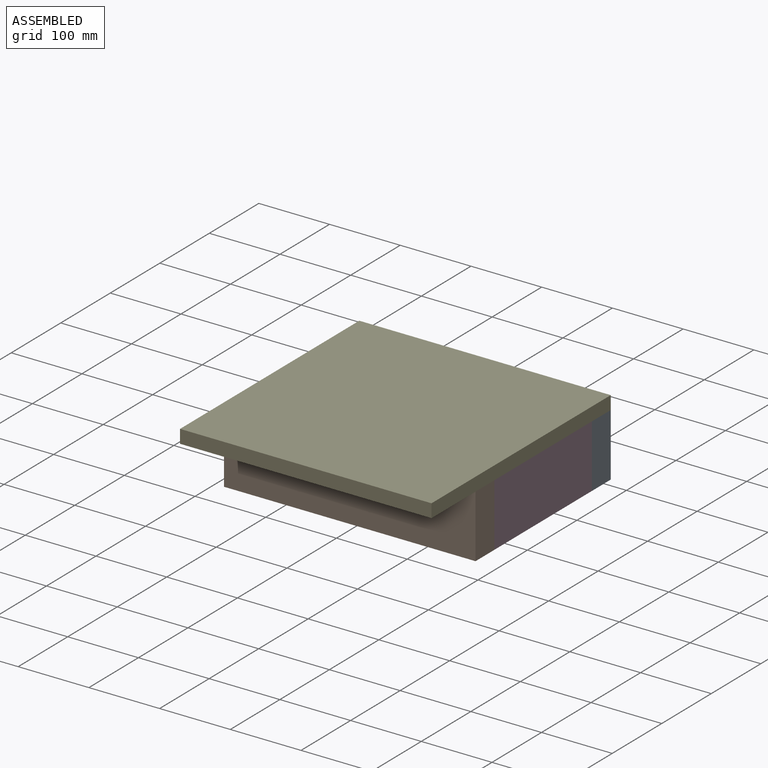
[diagram: assembled view]
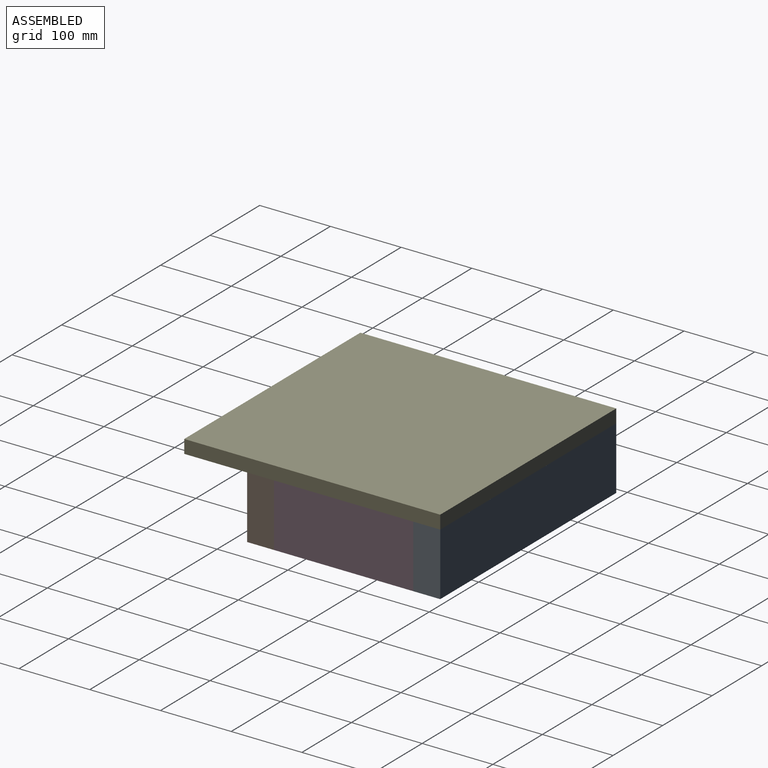
[diagram: assembled view, second angle]
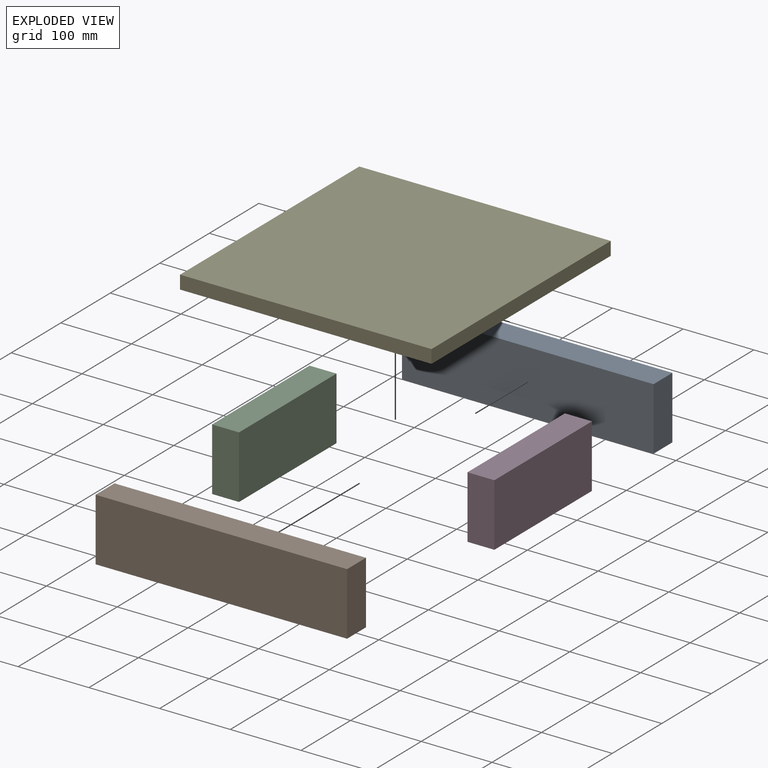
[diagram: exploded view]
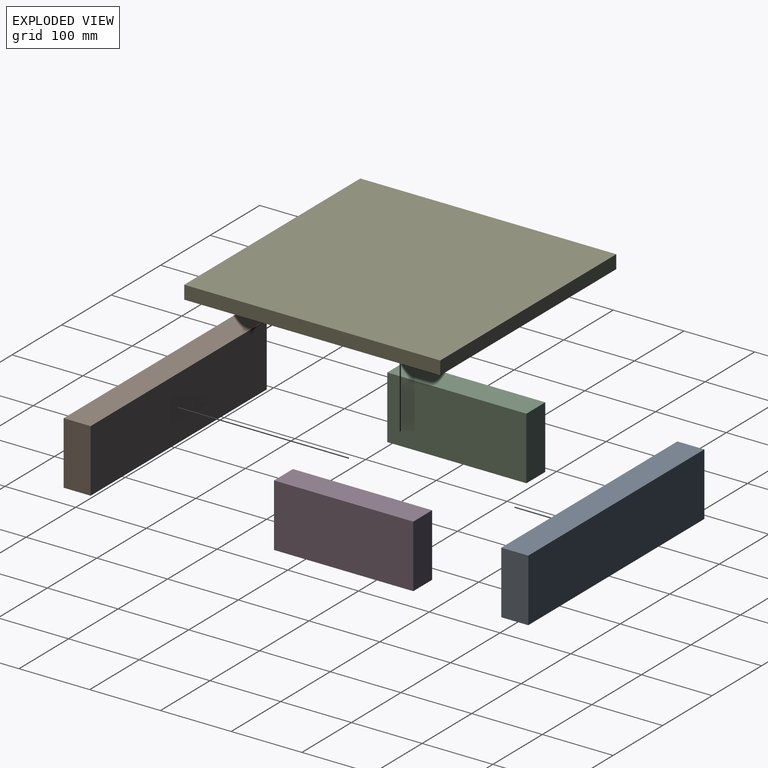
[diagram: exploded view, second angle]
ASSEMBLY  parts=5 mates=4
PART A: 6 faces, bbox 355.6x38.1x88.9 mm
  f0: plane 355.6x38.1mm, normal (0,0,1), area 13548.4mm2, adj f1,f3,f4,f5
  f1: plane 355.6x88.9mm, normal (0,-1,0), area 31612.8mm2, adj f0,f2,f3,f4
  f2: plane 355.6x38.1mm, normal (0,0,-1), area 13548.4mm2, adj f1,f3,f4,f5
  f3: plane 88.9x38.1mm, normal (1,0,0), area 3387.1mm2, adj f0,f1,f2,f5
  f4: plane 88.9x38.1mm, normal (-1,0,0), area 3387.1mm2, adj f0,f1,f2,f5
  f5: plane 355.6x88.9mm, normal (0,1,0), area 31612.8mm2, adj f0,f2,f3,f4
PART B: same geometry as A
PART C: 6 faces, bbox 38.1x196.9x88.9 mm
  f0: plane 196.85x38.1mm, normal (0,0,1), area 7500mm2, adj f1,f2,f3,f4
  f1: plane 196.85x88.9mm, normal (1,0,0), area 17500mm2, adj f0,f2,f4,f5
  f2: plane 88.9x38.1mm, normal (0,1,0), area 3387.1mm2, adj f0,f1,f3,f5
  f3: plane 196.85x88.9mm, normal (-1,0,0), area 17500mm2, adj f0,f2,f4,f5
  f4: plane 88.9x38.1mm, normal (0,-1,0), area 3387.1mm2, adj f0,f1,f3,f5
  f5: plane 196.85x38.1mm, normal (0,0,-1), area 7500mm2, adj f1,f2,f3,f4
PART D: same geometry as C
PART E: 6 faces, bbox 355.6x362x19.1 mm
  f0: plane 361.95x355.6mm, normal (0,0,-1), area 128709.4mm2, adj f1,f2,f3,f4
  f1: plane 361.95x19.05mm, normal (-1,0,0), area 6895.1mm2, adj f0,f2,f4,f5
  f2: plane 355.6x19.05mm, normal (0,-1,0), area 6774.2mm2, adj f0,f1,f3,f5
  f3: plane 361.95x19.05mm, normal (1,0,0), area 6895.1mm2, adj f0,f2,f4,f5
  f4: plane 355.6x19.05mm, normal (0,1,0), area 6774.2mm2, adj f0,f1,f3,f5
  f5: plane 361.95x355.6mm, normal (0,0,1), area 128709.4mm2, adj f1,f2,f3,f4
PLACE A t=(0,234.95,0)mm
PLACE B at identity fixed
PLACE C t=(57.15,0,0)mm
PLACE D t=(374.65,0,0)mm
PLACE E t=(374.65,0,107.95)mm
MATE fastened A.f1 <-> C.f2  axis (0,-1,0) through (-177.8,-38.1,0)mm
MATE fastened B.f5 <-> D.f4  axis (0,1,0) through (177.8,-234.95,0)mm
MATE fastened A.f0 <-> E.f0  axis (0,0,1) through (-177.8,0,88.9)mm
MATE fastened C.f4 <-> B.f5  axis (0,-1,0) through (-177.8,-234.95,0)mm
